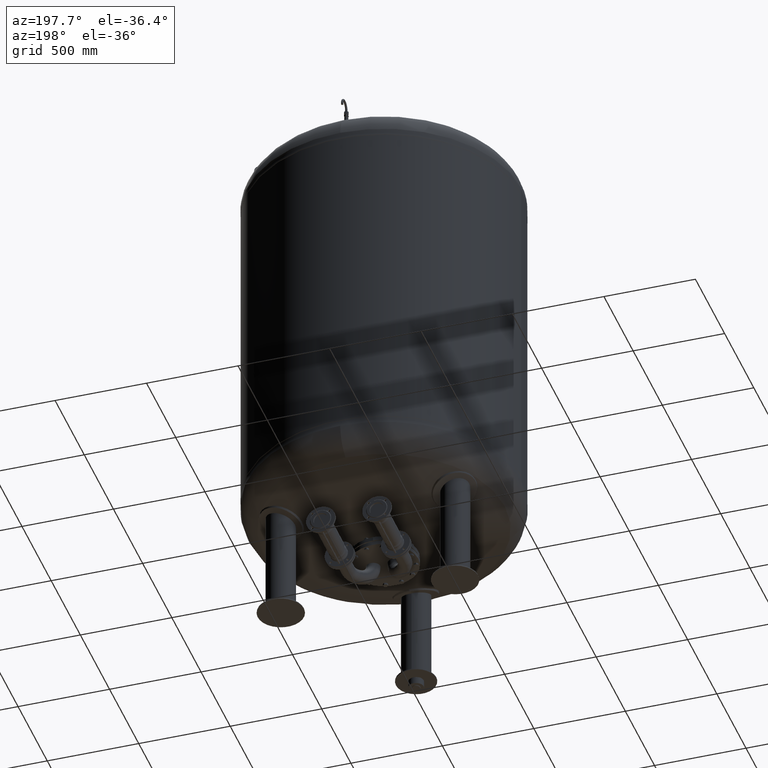
[diagram: clean part render]
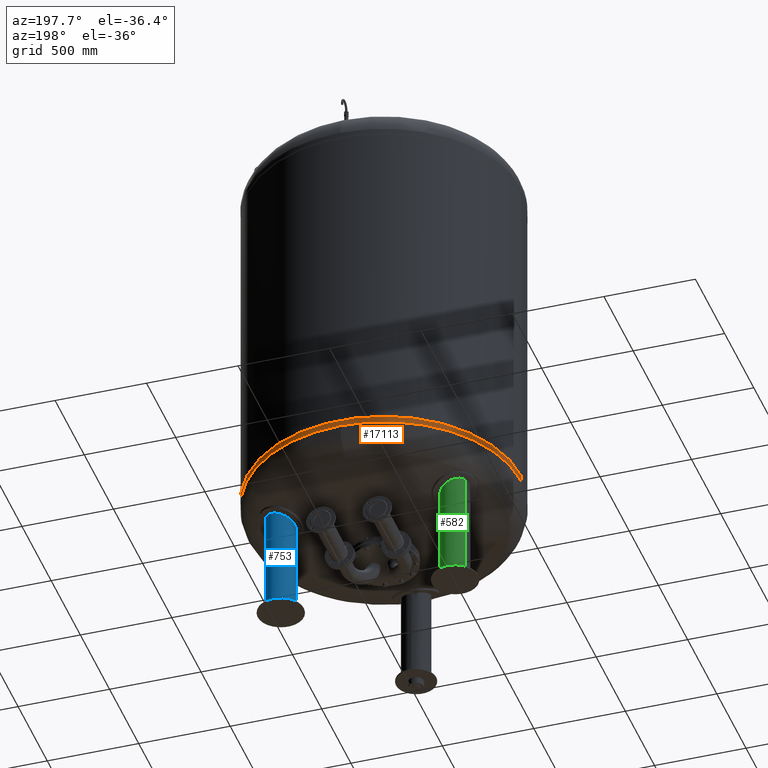
[diagram: same view with three faces highlighted in distinct colors, each labeled with its STEP entity id]
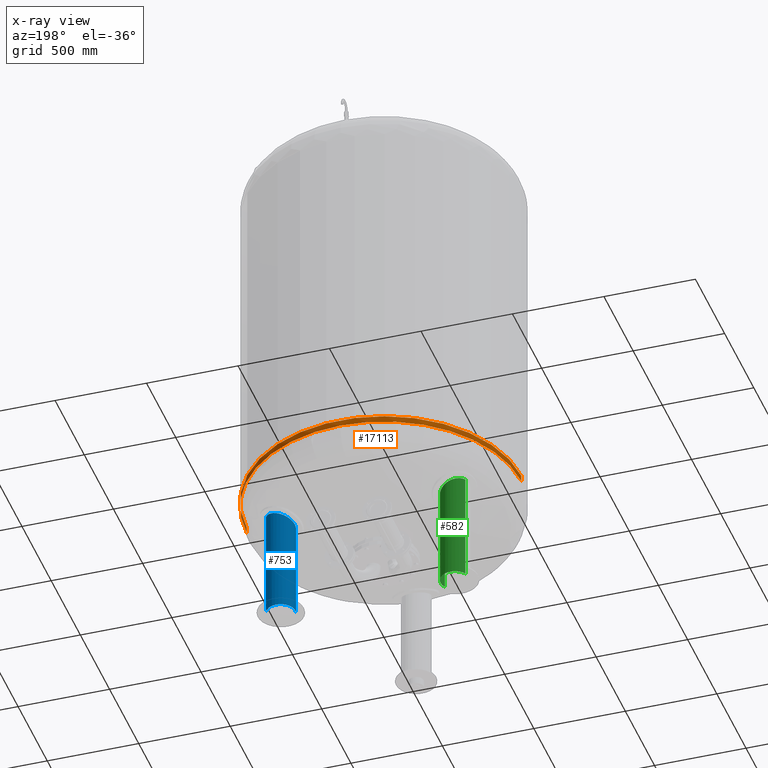
[diagram: x-ray of the same camera — body ghosted, the three highlighted faces saturated]
A machine part, auxiliary view with three faces highlighted in distinct colors.
The next image is the same camera in x-ray (body ghosted, the three faces saturated) — at least one of them is partly hidden behind the body in this view.
Their STEP definitions:

[orange] entity #17113 — the highlighted cylindrical surface (partial cylindrical patch) has radius 750 mm, axis along (-0, -0, 1).
#17063=CARTESIAN_POINT('',(-5.374415E-014,-5.742715E-014,802.618833707949080));
#17064=DIRECTION('',(-1.719159E-016,-1.836970E-016,1.0));
#17065=DIRECTION('',(-1.0,0.0,0.0));
#17066=AXIS2_PLACEMENT_3D('',#17063,#17064,#17065);
#17067=CYLINDRICAL_SURFACE('',#17066,750.0);
#17068=CARTESIAN_POINT('',(-750.0,-6.062002E-014,819.999999999999890));
#17069=VERTEX_POINT('',#17068);
#17070=CARTESIAN_POINT('',(-750.0,-5.423428E-014,785.237667415897930));
#17071=VERTEX_POINT('',#17070);
#17072=CARTESIAN_POINT('',(-750.0,-6.062002E-014,819.999999999999890));
#17073=DIRECTION('',(0.0,0.0,-1.0));
#17074=VECTOR('',#17073,34.762332584101955);
#17075=LINE('',#17072,#17074);
#17076=EDGE_CURVE('',#17069,#17071,#17075,.T.);
#17077=ORIENTED_EDGE('',*,*,#17076,.F.);
#17078=CARTESIAN_POINT('',(750.0,3.122546E-014,820.000000000000110));
#17079=VERTEX_POINT('',#17078);
#17080=CARTESIAN_POINT('',(-5.673224E-014,-6.062002E-014,820.0));
#17081=DIRECTION('',(0.0,0.0,1.0));
#17082=DIRECTION('',(-1.0,0.0,0.0));
#17083=AXIS2_PLACEMENT_3D('',#17080,#17081,#17082);
#17084=CIRCLE('',#17083,750.0);
#17085=EDGE_CURVE('',#17079,#17069,#17084,.T.);
#17086=ORIENTED_EDGE('',*,*,#17085,.F.);
#17087=CARTESIAN_POINT('',(750.0,3.761120E-014,785.237667415898160));
#17088=VERTEX_POINT('',#17087);
#17089=CARTESIAN_POINT('',(750.0,3.122546E-014,820.000000000000110));
#17090=DIRECTION('',(0.0,0.0,-1.0));
#17091=VECTOR('',#17090,34.762332584101955);
#17092=LINE('',#17089,#17091);
#17093=EDGE_CURVE('',#17079,#17088,#17092,.T.);
#17094=ORIENTED_EDGE('',*,*,#17093,.T.);
#17095=CARTESIAN_POINT('',(-1.628998E-013,750.0,785.237667415898270));
#17096=VERTEX_POINT('',#17095);
#17097=CARTESIAN_POINT('',(-5.075605E-014,-5.423428E-014,785.237667415898160));
#17098=DIRECTION('',(0.0,0.0,1.0));
#17099=DIRECTION('',(-1.0,0.0,0.0));
#17100=AXIS2_PLACEMENT_3D('',#17097,#17098,#17099);
#17101=CIRCLE('',#17100,750.0);
#17102=EDGE_CURVE('',#17088,#17096,#17101,.T.);
#17103=ORIENTED_EDGE('',*,*,#17102,.T.);
#17104=CARTESIAN_POINT('',(-5.075605E-014,-5.423428E-014,785.237667415898160));
#17105=DIRECTION('',(0.0,0.0,1.0));
#17106=DIRECTION('',(-1.0,0.0,0.0));
#17107=AXIS2_PLACEMENT_3D('',#17104,#17105,#17106);
#17108=CIRCLE('',#17107,750.0);
#17109=EDGE_CURVE('',#17096,#17071,#17108,.T.);
#17110=ORIENTED_EDGE('',*,*,#17109,.T.);
#17111=EDGE_LOOP('',(#17077,#17086,#17094,#17103,#17110));
#17112=FACE_OUTER_BOUND('',#17111,.T.);
#17113=ADVANCED_FACE('',(#17112),#17067,.T.);

[blue] entity #753 — the highlighted cylindrical surface (edge-blend (fillet) strip) has radius 79.5 mm, axis along (-0, 0, -1).
#687=CARTESIAN_POINT('',(476.313972081441250,274.999999999999940,15.815585141290533));
#688=DIRECTION('',(-9.184851E-017,1.590863E-016,-1.0));
#689=DIRECTION('',(0.866025403784439,0.500000000000000,0.0));
#690=AXIS2_PLACEMENT_3D('',#687,#688,#689);
#691=CYLINDRICAL_SURFACE('',#690,79.500000000000000);
#692=CARTESIAN_POINT('',(545.162991682304100,314.749999999999940,11.631170282581067));
#693=VERTEX_POINT('',#692);
#694=CARTESIAN_POINT('',(545.162991682304780,314.750000000000170,619.974328976416250));
#695=VERTEX_POINT('',#694);
#696=CARTESIAN_POINT('',(545.162991682304100,314.749999999999940,11.631170282581067));
#697=DIRECTION('',(0.0,0.0,1.0));
#698=VECTOR('',#697,608.343158693835220);
#699=LINE('',#696,#698);
#700=EDGE_CURVE('',#693,#695,#699,.T.);
#701=ORIENTED_EDGE('',*,*,#700,.F.);
#702=CARTESIAN_POINT('',(407.464952480578400,235.249999999999940,11.631170282581067));
#703=VERTEX_POINT('',#702);
#704=CARTESIAN_POINT('',(476.313972081441250,274.999999999999940,11.631170282581067));
#705=DIRECTION('',(0.0,0.0,-1.0));
#706=DIRECTION('',(0.866025403784439,0.500000000000000,0.0));
#707=AXIS2_PLACEMENT_3D('',#704,#705,#706);
#708=CIRCLE('',#707,79.500000000000000);
#709=EDGE_CURVE('',#703,#693,#708,.T.);
#710=ORIENTED_EDGE('',*,*,#709,.F.);
#711=CARTESIAN_POINT('',(407.464952480578400,235.249999999999830,557.801446445446690));
#712=VERTEX_POINT('',#711);
#713=CARTESIAN_POINT('',(407.464952480578400,235.249999999999940,11.631170282581067));
#714=DIRECTION('',(0.0,0.0,1.0));
#715=VECTOR('',#714,546.170276162865660);
#716=LINE('',#713,#715);
#717=EDGE_CURVE('',#703,#712,#716,.T.);
#718=ORIENTED_EDGE('',*,*,#717,.T.);
#719=CARTESIAN_POINT('',(435.923993297311600,343.475540259405990,588.259208461118310));
#720=VERTEX_POINT('',#719);
#721=CARTESIAN_POINT('',(407.464952480578400,235.249999999999830,557.801446445446690));
#722=CARTESIAN_POINT('',(403.404620725765540,242.282700894921050,557.801446445446690));
#723=CARTESIAN_POINT('',(400.451610787080200,249.885975801156520,558.277369662588170));
#724=CARTESIAN_POINT('',(396.597055088747990,267.270620755335590,560.328261777430270));
#725=CARTESIAN_POINT('',(396.270319464510980,276.954377197880150,562.075596332598020));
#726=CARTESIAN_POINT('',(399.072489778784760,296.341456745020760,566.734659420112730));
#727=CARTESIAN_POINT('',(402.373919211337180,305.818108910622580,569.661195647944850));
#728=CARTESIAN_POINT('',(412.496769615312990,323.583126452498620,576.486089468713540));
#729=CARTESIAN_POINT('',(419.500370050858520,331.582796994882020,580.391859104990320));
#730=CARTESIAN_POINT('',(430.379304327032230,339.969799272506860,585.699021239809100));
#731=CARTESIAN_POINT('',(433.101443881988190,341.810672620973430,586.978453284904280));
#732=CARTESIAN_POINT('',(435.923993297311600,343.475540259405990,588.259208461118310));
#733=B_SPLINE_CURVE_WITH_KNOTS('',3,(#721,#722,#723,#724,#725,#726,#727,#728,#729,#730,#731,#732),.UNSPECIFIED.,.F.,.U.,(4,2,2,2,2,4),(25.946274642103887,28.391196783303212,31.323094720106891,34.426409319311013,37.777807879739491,38.832927063684011),.UNSPECIFIED.);
#734=EDGE_CURVE('',#712,#720,#733,.T.);
#735=ORIENTED_EDGE('',*,*,#734,.T.);
#736=CARTESIAN_POINT('',(435.923993297311600,343.475540259405990,588.259208461118310));
#737=CARTESIAN_POINT('',(442.620858014037540,347.425654749982700,591.297966296069830));
#738=CARTESIAN_POINT('',(449.882913637144440,350.384943361649900,594.344322088061060));
#739=CARTESIAN_POINT('',(468.025368474697360,354.807454012759190,601.394273940897850));
#740=CARTESIAN_POINT('',(479.095487505130900,355.220505554612940,605.264897102246320));
#741=CARTESIAN_POINT('',(500.101187832981220,351.546225351953470,611.749699955350710));
#742=CARTESIAN_POINT('',(509.890893953472470,347.824400099864870,614.383971692484580));
#743=CARTESIAN_POINT('',(524.123023604612060,338.831776724313730,617.505471067215810));
#744=CARTESIAN_POINT('',(529.077385518121330,334.809706666959300,618.415766111970470));
#745=CARTESIAN_POINT('',(538.005689491232830,325.557982821373230,619.656658887407730));
#746=CARTESIAN_POINT('',(541.918381164990710,320.369830266758530,619.974328976416020));
#747=CARTESIAN_POINT('',(545.162991682303980,314.749999999999720,619.974328976416020));
#748=B_SPLINE_CURVE_WITH_KNOTS('',3,(#736,#737,#738,#739,#740,#741,#742,#743,#744,#745,#746,#747),.UNSPECIFIED.,.F.,.U.,(4,2,2,2,2,4),(38.832927063684011,41.336334230459492,44.806614551580793,48.013896662752792,49.941938919734973,51.888705230122902),.UNSPECIFIED.);
#749=EDGE_CURVE('',#720,#695,#748,.T.);
#750=ORIENTED_EDGE('',*,*,#749,.T.);
#751=EDGE_LOOP('',(#701,#710,#718,#735,#750));
#752=FACE_OUTER_BOUND('',#751,.T.);
#753=ADVANCED_FACE('',(#752),#691,.T.);

[green] entity #582 — the highlighted cylindrical surface (edge-blend (fillet) strip) has radius 79.5 mm, axis along (-0, -0, -1).
#172=CARTESIAN_POINT('',(-545.162991682303980,314.750000000000060,11.631170282581067));
#173=VERTEX_POINT('',#172);
#174=CARTESIAN_POINT('',(-545.162991682304550,314.750000000000450,619.974328976416250));
#175=VERTEX_POINT('',#174);
#176=CARTESIAN_POINT('',(-545.162991682303980,314.750000000000060,11.631170282581067));
#177=DIRECTION('',(0.0,0.0,1.0));
#178=VECTOR('',#177,608.343158693835220);
#179=LINE('',#176,#178);
#180=EDGE_CURVE('',#173,#175,#179,.T.);
#182=CARTESIAN_POINT('',(-407.464952480578290,235.250000000000060,11.631170282581067));
#183=VERTEX_POINT('',#182);
#191=CARTESIAN_POINT('',(-407.464952480578230,235.250000000000140,557.801446445446800));
#192=VERTEX_POINT('',#191);
#193=CARTESIAN_POINT('',(-407.464952480578290,235.250000000000060,11.631170282581067));
#194=DIRECTION('',(0.0,0.0,1.0));
#195=VECTOR('',#194,546.170276162865780);
#196=LINE('',#193,#195);
#197=EDGE_CURVE('',#183,#192,#196,.T.);
#279=CARTESIAN_POINT('',(-435.923993297311370,343.475540259406330,588.259208461118190));
#280=VERTEX_POINT('',#279);
#281=CARTESIAN_POINT('',(-435.923993297311370,343.475540259406330,588.259208461118190));
#282=CARTESIAN_POINT('',(-428.294244079324590,338.975168186761210,584.797146556691930));
#283=CARTESIAN_POINT('',(-421.432219721340520,333.208904948055650,581.360502151041940));
#284=CARTESIAN_POINT('',(-408.717320989592280,318.197262877139110,574.174236989335670));
#285=CARTESIAN_POINT('',(-403.428779549836580,308.594560981841880,570.549958778381670));
#286=CARTESIAN_POINT('',(-397.284632061759960,288.348202161642860,564.600364334074580));
#287=CARTESIAN_POINT('',(-396.189586487437570,278.010947247717640,562.252334812652180));
#288=CARTESIAN_POINT('',(-398.071116691459050,257.806862096045680,559.003880738072780));
#289=CARTESIAN_POINT('',(-400.811446048780570,248.180804466063190,558.070588206412370));
#290=CARTESIAN_POINT('',(-405.983358000271210,237.903174880540690,557.818088260262240));
#291=CARTESIAN_POINT('',(-406.705844140872780,236.564814212819240,557.801446445446800));
#292=CARTESIAN_POINT('',(-407.464952480578230,235.250000000000140,557.801446445446800));
#293=B_SPLINE_CURVE_WITH_KNOTS('',3,(#281,#282,#283,#284,#285,#286,#287,#288,#289,#290,#291,#292),.UNSPECIFIED.,.F.,.U.,(4,2,2,2,2,4),(13.058196146459961,15.908544671985489,19.326182717890447,22.493256912797680,25.489178793934588,25.946274642103891),.UNSPECIFIED.);
#294=EDGE_CURVE('',#280,#192,#293,.T.);
#545=CARTESIAN_POINT('',(-545.162991682303980,314.750000000000110,619.974328976416470));
#546=CARTESIAN_POINT('',(-540.366890598841340,323.057090754793140,619.974328976416020));
#547=CARTESIAN_POINT('',(-534.131807051763190,330.386322806354370,619.280247607236110));
#548=CARTESIAN_POINT('',(-519.299997618791850,342.575536920710190,616.585819491894090));
#549=CARTESIAN_POINT('',(-510.836973519929360,347.237482487707330,614.592514188904490));
#550=CARTESIAN_POINT('',(-492.270020921124630,353.538138546992290,609.453155597640030));
#551=CARTESIAN_POINT('',(-482.267074518464090,354.891128663839990,606.286372499794770));
#552=CARTESIAN_POINT('',(-461.710332890184820,353.875417057553590,599.055880090259170));
#553=CARTESIAN_POINT('',(-451.315557892038040,351.203205063835750,594.989155554557560));
#554=CARTESIAN_POINT('',(-439.795744250857300,345.651357521946750,589.995750597807050));
#555=CARTESIAN_POINT('',(-437.835763685399230,344.603189126760700,589.126690109794940));
#556=CARTESIAN_POINT('',(-435.923993297311370,343.475540259406330,588.259208461118190));
#557=B_SPLINE_CURVE_WITH_KNOTS('',3,(#545,#546,#547,#548,#549,#550,#551,#552,#553,#554,#555,#556),.UNSPECIFIED.,.F.,.U.,(4,2,2,2,2,4),(0.0,2.877660650077480,5.813761654146234,8.951189755024860,12.343990246483170,13.058196146459961),.UNSPECIFIED.);
#558=EDGE_CURVE('',#175,#280,#557,.T.);
#564=CARTESIAN_POINT('',(-476.313972081441140,275.000000000000060,15.815585141290533));
#565=DIRECTION('',(-9.184851E-017,-1.590863E-016,-1.0));
#566=DIRECTION('',(-0.866025403784439,0.500000000000000,0.0));
#567=AXIS2_PLACEMENT_3D('',#564,#565,#566);
#568=CYLINDRICAL_SURFACE('',#567,79.500000000000000);
#569=ORIENTED_EDGE('',*,*,#180,.T.);
#570=ORIENTED_EDGE('',*,*,#558,.T.);
#571=ORIENTED_EDGE('',*,*,#294,.T.);
#572=ORIENTED_EDGE('',*,*,#197,.F.);
#573=CARTESIAN_POINT('',(-476.313972081441140,275.000000000000060,11.631170282581067));
#574=DIRECTION('',(0.0,0.0,-1.0));
#575=DIRECTION('',(-0.866025403784439,0.500000000000000,0.0));
#576=AXIS2_PLACEMENT_3D('',#573,#574,#575);
#577=CIRCLE('',#576,79.500000000000000);
#578=EDGE_CURVE('',#173,#183,#577,.T.);
#579=ORIENTED_EDGE('',*,*,#578,.F.);
#580=EDGE_LOOP('',(#569,#570,#571,#572,#579));
#581=FACE_OUTER_BOUND('',#580,.T.);
#582=ADVANCED_FACE('',(#581),#568,.T.);